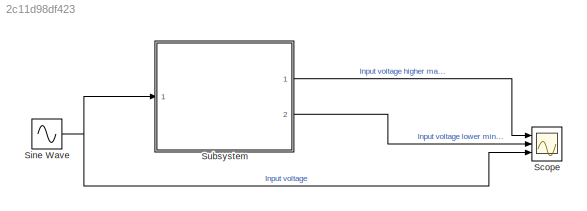
MODEL slx_2c11d98df423
KIND model
CONFIG AbsTol = auto
CONFIG EnableMultiTasking = off
CONFIG FixedStep = auto
CONFIG MaxStep = auto
CONFIG MinStep = auto
CONFIG RelTol = 1e-3
CONFIG SampleTimeConstraint = Unconstrained
CONFIG Solver = VariableStepAuto
CONFIG SolverName = VariableStepAuto
CONFIG StartTime = 0.0
CONFIG StopTime = 10.0
BLOCK [Scope] Scope
  Floating = off
  NumInputPorts = 3
  Ports = [3]
  ScopeSpecificationString = Simulink.scopes.TimeScopeBlockCfg('CurrentConfiguration', extmgr.ConfigurationSet(extmgr.Configuration('Core','General UI',true),extmgr.Configuration('Core','Source UI',true),extmgr.Configuration('Sources','WiredSimulink',true),extmgr.Configuration('Visuals','Time Domain',true,'SerializedDisplays',{struct('MinYLimReal','-0.125','MaxYLimReal','1.125','YLabelReal','','MinYLimMag','0.00000','MaxYLimM...<+2670ch>
BLOCK [Sin] Sine Wave
  Amplitude = 1.5
  Bias = 3.5
  Ports = [0, 1]
  SampleTime = 0
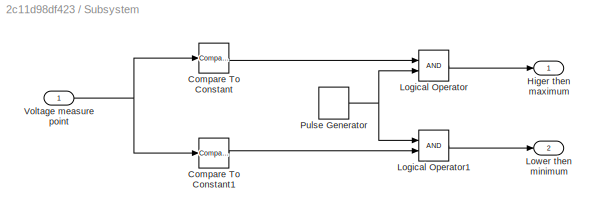
BLOCK [SubSystem] Subsystem
  Ports = [1, 2]
  RequestExecContextInheritance = off
BLOCK [Reference] Subsystem/Compare To Constant  REF=simulink/Logic and Bit
Operations/Compare
To Constant
  Ports = [1, 1]
  SourceBlock = simulink/Logic and Bit\nOperations/Compare\nTo Constant
  SourceProductBaseCode = SL
  SourceProductName = Simulink
  SourceType = Compare To Constant
BLOCK [Reference] Subsystem/Compare To Constant1  REF=simulink/Logic and Bit
Operations/Compare
To Constant
  Ports = [1, 1]
  SourceBlock = simulink/Logic and Bit\nOperations/Compare\nTo Constant
  SourceProductBaseCode = SL
  SourceProductName = Simulink
  SourceType = Compare To Constant
BLOCK [Outport] Subsystem/Higer then maximum
  IconDisplay = Port number
BLOCK [Logic] Subsystem/Logical Operator
  AllPortsSameDT = off
  OutDataTypeStr = boolean
  Ports = [2, 1]
BLOCK [Logic] Subsystem/Logical Operator1
  AllPortsSameDT = off
  OutDataTypeStr = boolean
  Ports = [2, 1]
BLOCK [Outport] Subsystem/Lower then minimum
  IconDisplay = Port number
  Port = 2
BLOCK [DiscretePulseGenerator] Subsystem/Pulse Generator
  Period = 1
  Ports = [0, 1]
  PulseType = Time based
  PulseWidth = 50
BLOCK [Inport] Subsystem/Voltage measure point
  IconDisplay = Port number
NET Sine Wave:1 -> Scope:3, Subsystem:1
LINE Subsystem/Compare To Constant1:1 -> Subsystem/Logical Operator1:2
LINE Subsystem/Compare To Constant:1 -> Subsystem/Logical Operator:1
LINE Subsystem/Logical Operator1:1 -> Subsystem/Lower then minimum:1
LINE Subsystem/Logical Operator:1 -> Subsystem/Higer then maximum:1
NET Subsystem/Pulse Generator:1 -> Subsystem/Logical Operator1:1, Subsystem/Logical Operator:2
NET Subsystem/Voltage measure point:1 -> Subsystem/Compare To Constant1:1, Subsystem/Compare To Constant:1
LINE Subsystem:1 -> Scope:1
LINE Subsystem:2 -> Scope:2
note: NET lines group one-source signal fan-out (src -> all destinations, sorted); 1:1 wires keep LINE
